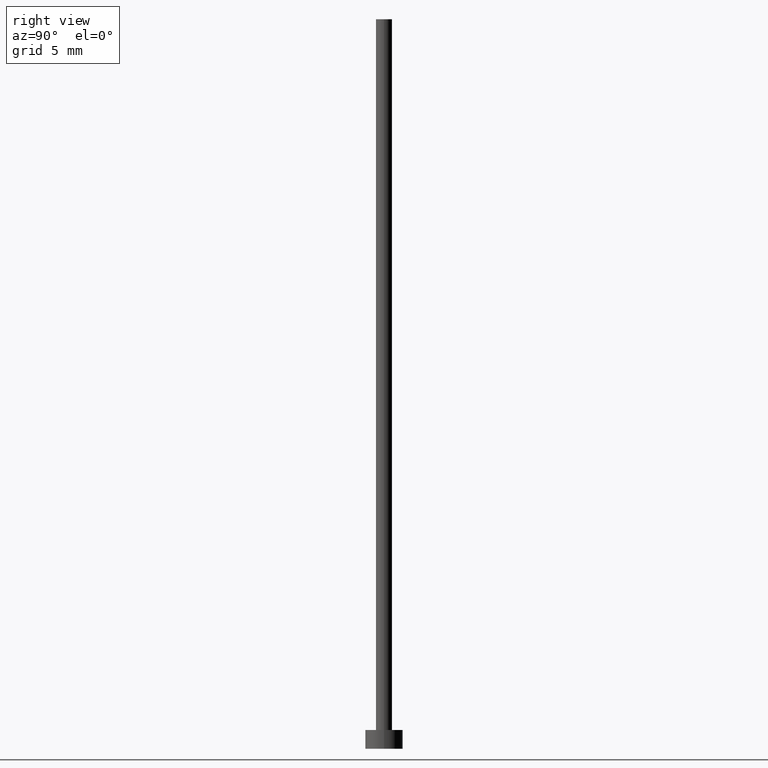
[diagram: clean part render]
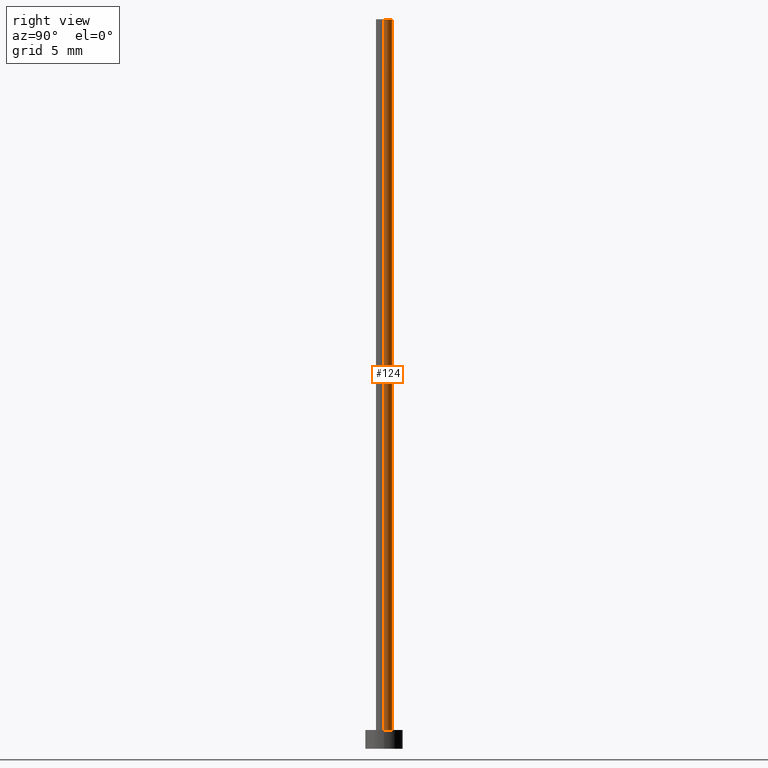
[diagram: same view with one face highlighted and labeled with its STEP entity id]
A machine part, right view. The second image highlights one B-rep face of the part: STEP entity #124.
In plain terms, the highlighted cylindrical surface (edge-blend (fillet) strip) has radius 0.65 mm, axis along (-0, -0, -1).
Its self-contained STEP definition (entity closure, byte-faithful):
#18 = CARTESIAN_POINT ( 'NONE',  ( 0.6500000000000000222, 7.960204194457794244E-17, 58.50000000000000000 ) ) ;
#20 = EDGE_CURVE ( 'NONE', #185, #58, #148, .T. ) ;
#23 = VERTEX_POINT ( 'NONE', #26 ) ;
#25 = VECTOR ( 'NONE', #63, 1000.000000000000000 ) ;
#26 = CARTESIAN_POINT ( 'NONE',  ( 0.6500000000000000222, 7.960204194457794244E-17, 1.500000000000000000 ) ) ;
#28 = CARTESIAN_POINT ( 'NONE',  ( 0.000000000000000000, 0.000000000000000000, 58.50000000000000000 ) ) ;
#32 = AXIS2_PLACEMENT_3D ( 'NONE', #76, #107, #182 ) ;
#58 = VERTEX_POINT ( 'NONE', #70 ) ;
#63 = DIRECTION ( 'NONE',  ( -0.000000000000000000, -0.000000000000000000, -1.000000000000000000 ) ) ;
#64 = EDGE_LOOP ( 'NONE', ( #121, #106, #150, #234 ) ) ;
#70 = CARTESIAN_POINT ( 'NONE',  ( -0.6500000000000000222, 0.000000000000000000, 1.500000000000000000 ) ) ;
#74 = CIRCLE ( 'NONE', #157, 0.6500000000000000222 ) ;
#76 = CARTESIAN_POINT ( 'NONE',  ( 0.000000000000000000, 0.000000000000000000, 58.50000000000000000 ) ) ;
#80 = LINE ( 'NONE', #180, #25 ) ;
#86 = DIRECTION ( 'NONE',  ( 0.000000000000000000, 0.000000000000000000, 1.000000000000000000 ) ) ;
#96 = VECTOR ( 'NONE', #129, 1000.000000000000000 ) ;
#103 = DIRECTION ( 'NONE',  ( -1.000000000000000000, 0.000000000000000000, 0.000000000000000000 ) ) ;
#106 = ORIENTED_EDGE ( 'NONE', *, *, #177, .T. ) ;
#107 = DIRECTION ( 'NONE',  ( 0.000000000000000000, 0.000000000000000000, 1.000000000000000000 ) ) ;
#121 = ORIENTED_EDGE ( 'NONE', *, *, #174, .F. ) ;
#123 = AXIS2_PLACEMENT_3D ( 'NONE', #28, #125, #103 ) ;
#124 = ADVANCED_FACE ( 'NONE', ( #131 ), #204, .T. ) ;
#125 = DIRECTION ( 'NONE',  ( -0.000000000000000000, -0.000000000000000000, -1.000000000000000000 ) ) ;
#128 = DIRECTION ( 'NONE',  ( 1.000000000000000000, 0.000000000000000000, 0.000000000000000000 ) ) ;
#129 = DIRECTION ( 'NONE',  ( -0.000000000000000000, -0.000000000000000000, -1.000000000000000000 ) ) ;
#131 = FACE_OUTER_BOUND ( 'NONE', #64, .T. ) ;
#143 = CARTESIAN_POINT ( 'NONE',  ( 0.000000000000000000, 0.000000000000000000, 1.500000000000000000 ) ) ;
#145 = CIRCLE ( 'NONE', #32, 0.6500000000000000222 ) ;
#148 = LINE ( 'NONE', #219, #96 ) ;
#150 = ORIENTED_EDGE ( 'NONE', *, *, #208, .T. ) ;
#157 = AXIS2_PLACEMENT_3D ( 'NONE', #143, #86, #128 ) ;
#168 = VERTEX_POINT ( 'NONE', #18 ) ;
#174 = EDGE_CURVE ( 'NONE', #168, #185, #145, .T. ) ;
#177 = EDGE_CURVE ( 'NONE', #168, #23, #80, .T. ) ;
#180 = CARTESIAN_POINT ( 'NONE',  ( 0.6500000000000000222, 7.960204194457794244E-17, 58.50000000000000000 ) ) ;
#182 = DIRECTION ( 'NONE',  ( 1.000000000000000000, 0.000000000000000000, 0.000000000000000000 ) ) ;
#185 = VERTEX_POINT ( 'NONE', #210 ) ;
#204 = CYLINDRICAL_SURFACE ( 'NONE', #123, 0.6500000000000000222 ) ;
#208 = EDGE_CURVE ( 'NONE', #23, #58, #74, .T. ) ;
#210 = CARTESIAN_POINT ( 'NONE',  ( -0.6500000000000000222, 0.000000000000000000, 58.50000000000000000 ) ) ;
#219 = CARTESIAN_POINT ( 'NONE',  ( -0.6500000000000000222, 0.000000000000000000, 58.50000000000000000 ) ) ;
#234 = ORIENTED_EDGE ( 'NONE', *, *, #20, .F. ) ;